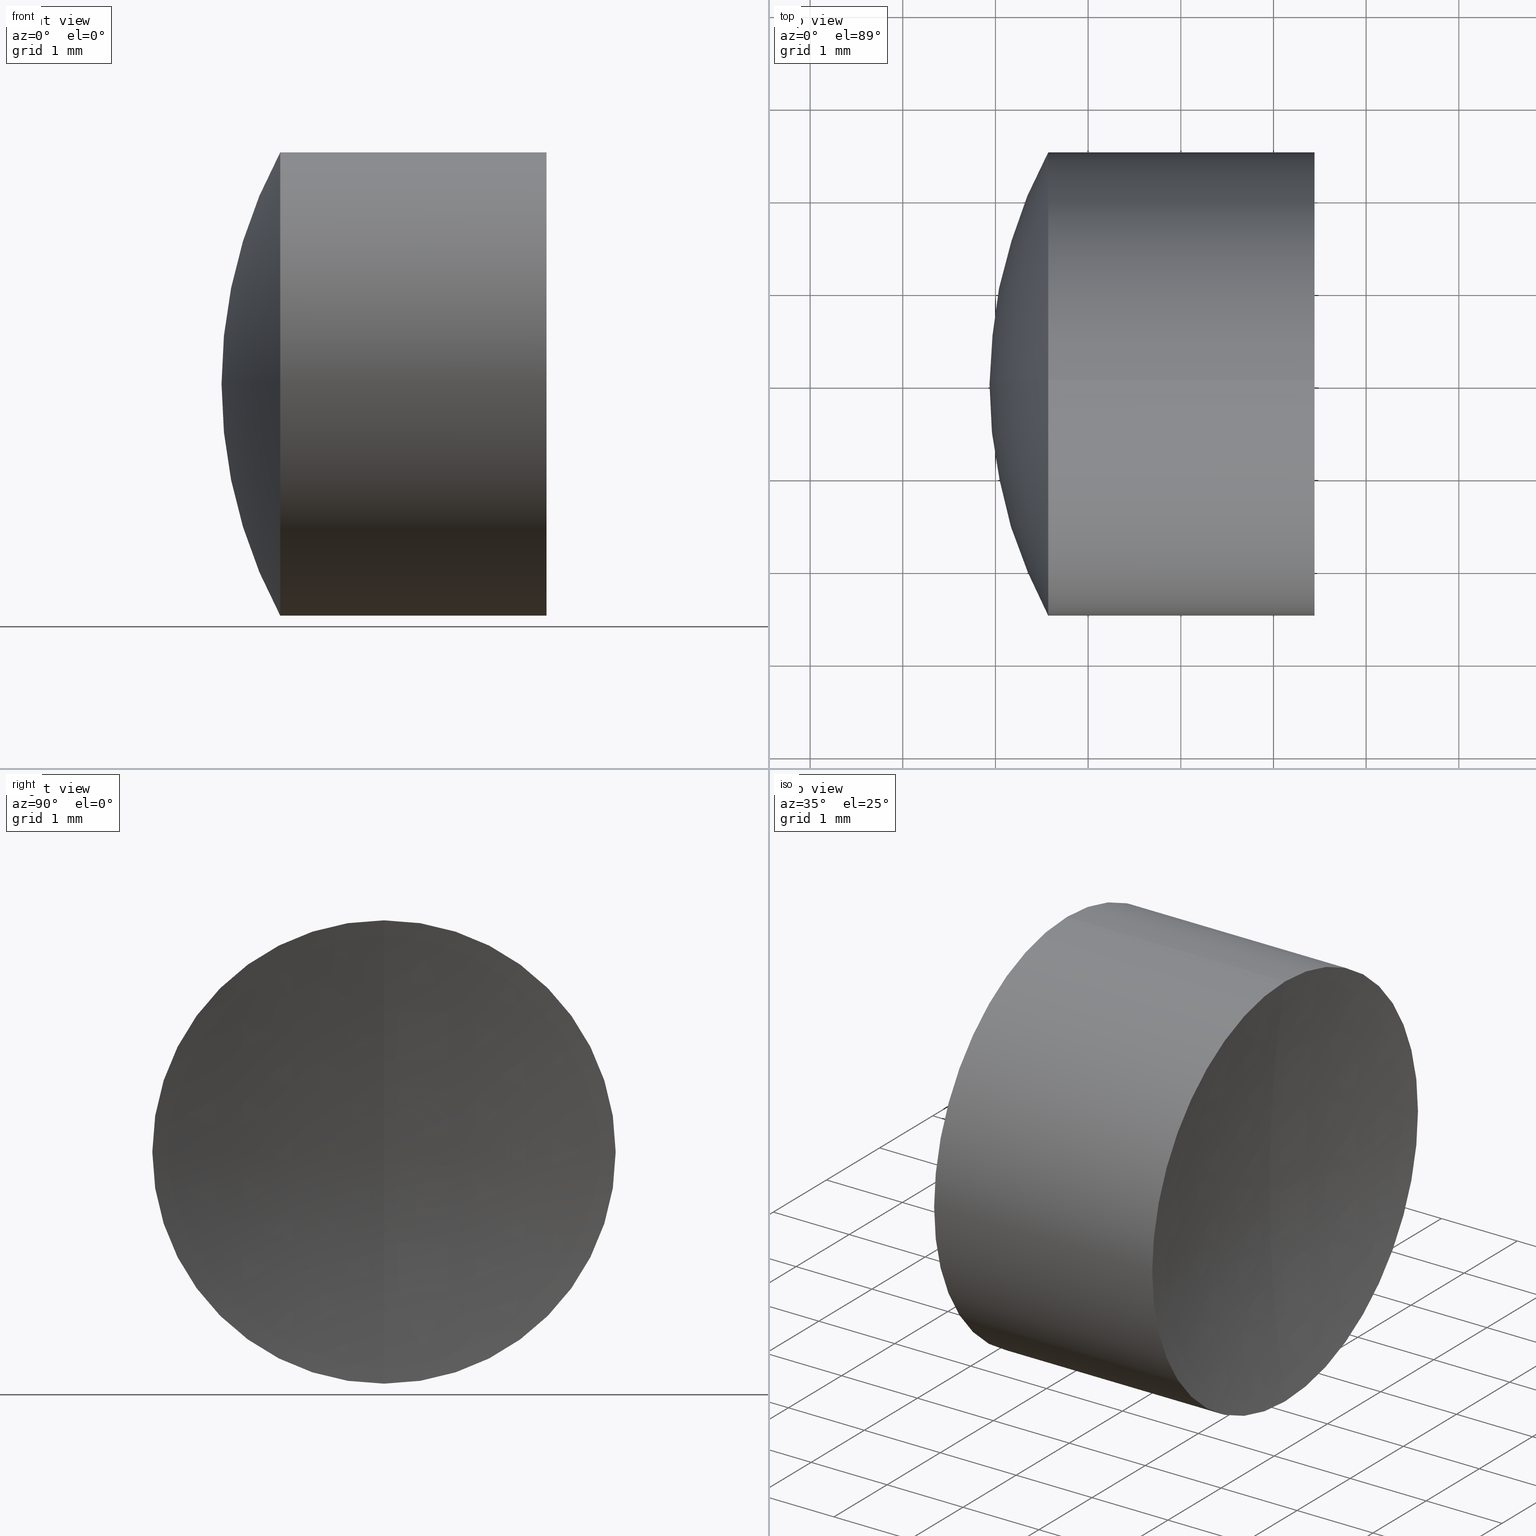
[diagram: canonical four-view strip — front | top / right | iso, engineering-drawing reading convention]
A machine part, canonical four-view strip (front | top / right | iso — engineering-drawing reading convention). The complete STEP part file that produces these views, byte-faithful:
ISO-10303-21;
HEADER;
FILE_DESCRIPTION (( 'STEP AP214' ),
    '1' );
FILE_NAME ('145146.STEP',
    '2019-06-06T02:30:16',
    ( 'user' ),
    ( '΢���й�' ),
    'SwSTEP 2.0',
    'SolidWorks 2016',
    '' );
FILE_SCHEMA (( 'AUTOMOTIVE_DESIGN' ));
ENDSEC;

DATA;
#1 = ORIENTED_EDGE ( 'NONE', *, *, #223, .F. ) ;
#2 = EDGE_CURVE ( 'NONE', #73, #293, #130, .T. ) ;
#3 = CYLINDRICAL_SURFACE ( 'NONE', #247, 2.500000000000000000 ) ;
#4 =( GEOMETRIC_REPRESENTATION_CONTEXT ( 3 ) GLOBAL_UNCERTAINTY_ASSIGNED_CONTEXT ( ( #74 ) ) GLOBAL_UNIT_ASSIGNED_CONTEXT ( ( #100, #106, #107 ) ) REPRESENTATION_CONTEXT ( 'NONE', 'WORKASPACE' ) );
#5 = EDGE_LOOP ( 'NONE', ( #278, #67, #94, #84 ) ) ;
#6 = CARTESIAN_POINT ( 'NONE',  ( 20.47602248475854500, 0.0000000000000000000, 0.0000000000000000000 ) ) ;
#7 = AXIS2_PLACEMENT_3D ( 'NONE', #322, #104, #102 ) ;
#8 = CARTESIAN_POINT ( 'NONE',  ( 7.186022484758546500, 0.0000000000000000000, -6.335624873417847600E-017 ) ) ;
#9 = DIRECTION ( 'NONE',  ( 1.000000000000000000, 0.0000000000000000000, 0.0000000000000000000 ) ) ;
#10 = DIRECTION ( 'NONE',  ( 0.0000000000000000000, -1.000000000000000000, 0.0000000000000000000 ) ) ;
#11 = APPLICATION_PROTOCOL_DEFINITION ( 'draft international standard', 'automotive_design', 1998, #334 ) ;
#12 = DIRECTION ( 'NONE',  ( 0.0000000000000000000, 0.0000000000000000000, -1.000000000000000000 ) ) ;
#13 = CYLINDRICAL_SURFACE ( 'NONE', #331, 2.500000000000000000 ) ;
#14 =( GEOMETRIC_REPRESENTATION_CONTEXT ( 3 ) GLOBAL_UNCERTAINTY_ASSIGNED_CONTEXT ( ( #245 ) ) GLOBAL_UNIT_ASSIGNED_CONTEXT ( ( #288, #232, #34 ) ) REPRESENTATION_CONTEXT ( 'NONE', 'WORKASPACE' ) );
#15 = CARTESIAN_POINT ( 'NONE',  ( 2.569476156603698800, 0.0000000000000000000, 0.0000000000000000000 ) ) ;
#16 = FACE_OUTER_BOUND ( 'NONE', #5, .T. ) ;
#17 = CARTESIAN_POINT ( 'NONE',  ( -1.513977515241453200, 0.0000000000000000000, 0.0000000000000000000 ) ) ;
#18 = UNCERTAINTY_MEASURE_WITH_UNIT (LENGTH_MEASURE( 1.000000000000000100E-005 ), #95, 'distance_accuracy_value', 'NONE');
#19 = DIRECTION ( 'NONE',  ( 0.0000000000000000000, 0.0000000000000000000, -1.000000000000000000 ) ) ;
#20 = EDGE_CURVE ( 'NONE', #293, #132, #168, .T. ) ;
#21 = COLOUR_RGB ( '',1.000000000000000000, 1.000000000000000000, 1.000000000000000000 ) ;
#22 = AXIS2_PLACEMENT_3D ( 'NONE', #93, #66, #188 ) ;
#23 = CARTESIAN_POINT ( 'NONE',  ( 5.442473336270686500, 0.0000000000000000000, -2.499999999999990200 ) ) ;
#24 = MECHANICAL_DESIGN_GEOMETRIC_PRESENTATION_REPRESENTATION (  '', ( #257 ), #49 ) ;
#25 = VERTEX_POINT ( 'NONE', #301 ) ;
#26 = MECHANICAL_DESIGN_GEOMETRIC_PRESENTATION_REPRESENTATION (  '', ( #302 ), #4 ) ;
#27 = ORIENTED_EDGE ( 'NONE', *, *, #79, .T. ) ;
#28 = CARTESIAN_POINT ( 'NONE',  ( 3.936022484758546500, 0.0000000000000000000, 3.337162527676537600E-016 ) ) ;
#29 = DIRECTION ( 'NONE',  ( -1.000000000000000000, -0.0000000000000000000, -0.0000000000000000000 ) ) ;
#30 = CARTESIAN_POINT ( 'NONE',  ( 7.186022484758546500, 0.0000000000000000000, -6.335624873417847600E-017 ) ) ;
#31 = CARTESIAN_POINT ( 'NONE',  ( 0.0000000000000000000, 0.0000000000000000000, 0.0000000000000000000 ) ) ;
#32 = CARTESIAN_POINT ( 'NONE',  ( 20.47602248475854500, 0.0000000000000000000, 0.0000000000000000000 ) ) ;
#33 = AXIS2_PLACEMENT_3D ( 'NONE', #173, #282, #68 ) ;
#34 =( NAMED_UNIT ( * ) SI_UNIT ( $, .STERADIAN. ) SOLID_ANGLE_UNIT ( ) );
#35 = DIRECTION ( 'NONE',  ( -0.0000000000000000000, 1.000000000000000000, 1.224646799147353200E-016 ) ) ;
#36 = CARTESIAN_POINT ( 'NONE',  ( 2.569476156603698800, 0.0000000000000000000, 2.500000000000000400 ) ) ;
#37 = EDGE_CURVE ( 'NONE', #228, #73, #151, .T. ) ;
#38 = ORIENTED_EDGE ( 'NONE', *, *, #223, .T. ) ;
#39 = SURFACE_STYLE_FILL_AREA ( #319 ) ;
#40 = DIRECTION ( 'NONE',  ( -0.0000000000000000000, -1.000000000000000000, -0.0000000000000000000 ) ) ;
#41 = ADVANCED_FACE ( 'NONE', ( #77 ), #13, .T. ) ;
#42 = DIRECTION ( 'NONE',  ( 0.0000000000000000000, 0.0000000000000000000, 1.000000000000000000 ) ) ;
#43 = AXIS2_PLACEMENT_3D ( 'NONE', #208, #294, #97 ) ;
#44 = ORIENTED_EDGE ( 'NONE', *, *, #304, .T. ) ;
#45 = CIRCLE ( 'NONE', #220, 5.250000000000000900 ) ;
#46 = CIRCLE ( 'NONE', #187, 5.450000000000000200 ) ;
#47 = AXIS2_PLACEMENT_3D ( 'NONE', #233, #35, #152 ) ;
#48 = PRODUCT_DEFINITION_CONTEXT ( 'detailed design', #310, 'design' ) ;
#49 =( GEOMETRIC_REPRESENTATION_CONTEXT ( 3 ) GLOBAL_UNCERTAINTY_ASSIGNED_CONTEXT ( ( #140 ) ) GLOBAL_UNIT_ASSIGNED_CONTEXT ( ( #287, #90, #253 ) ) REPRESENTATION_CONTEXT ( 'NONE', 'WORKASPACE' ) );
#50 = PRESENTATION_STYLE_ASSIGNMENT (( #91 ) ) ;
#51 = EDGE_CURVE ( 'NONE', #169, #25, #343, .T. ) ;
#52 = ORIENTED_EDGE ( 'NONE', *, *, #176, .F. ) ;
#53 = CARTESIAN_POINT ( 'NONE',  ( 2.569476156603698800, 3.061616997868383100E-016, -2.500000000000000400 ) ) ;
#54 = ORIENTED_EDGE ( 'NONE', *, *, #162, .F. ) ;
#55 = DIRECTION ( 'NONE',  ( 0.0000000000000000000, 1.000000000000000000, 0.0000000000000000000 ) ) ;
#56 = AXIS2_PLACEMENT_3D ( 'NONE', #116, #127, #85 ) ;
#57 = EDGE_LOOP ( 'NONE', ( #180, #111, #250 ) ) ;
#58 = CARTESIAN_POINT ( 'NONE',  ( 3.328800613064654400, 0.0000000000000000000, -2.499999999999997800 ) ) ;
#59 = CYLINDRICAL_SURFACE ( 'NONE', #203, 2.499999999999997800 ) ;
#60 = DIRECTION ( 'NONE',  ( -1.000000000000000000, -0.0000000000000000000, -0.0000000000000000000 ) ) ;
#61 =( NAMED_UNIT ( * ) SI_UNIT ( $, .STERADIAN. ) SOLID_ANGLE_UNIT ( ) );
#62 = CARTESIAN_POINT ( 'NONE',  ( -0.5519199926577972300, 0.0000000000000000000, 2.499999999999997800 ) ) ;
#63 = CARTESIAN_POINT ( 'NONE',  ( 7.186022484758546500, 0.0000000000000000000, -6.335624873417847600E-017 ) ) ;
#64 = FACE_OUTER_BOUND ( 'NONE', #101, .T. ) ;
#65 = DIRECTION ( 'NONE',  ( -1.000000000000000000, -0.0000000000000000000, -0.0000000000000000000 ) ) ;
#66 = DIRECTION ( 'NONE',  ( -1.000000000000000000, -0.0000000000000000000, -0.0000000000000000000 ) ) ;
#67 = ORIENTED_EDGE ( 'NONE', *, *, #2, .T. ) ;
#68 = DIRECTION ( 'NONE',  ( 0.0000000000000000000, 0.0000000000000000000, 1.000000000000000000 ) ) ;
#69 = CARTESIAN_POINT ( 'NONE',  ( 3.328800613064653900, 3.061616997868383100E-016, -2.500000000000000000 ) ) ;
#70 = ADVANCED_FACE ( 'NONE', ( #172 ), #266, .F. ) ;
#71 = FACE_OUTER_BOUND ( 'NONE', #166, .T. ) ;
#72 = AXIS2_PLACEMENT_3D ( 'NONE', #261, #65, #238 ) ;
#73 = VERTEX_POINT ( 'NONE', #69 ) ;
#74 = UNCERTAINTY_MEASURE_WITH_UNIT (LENGTH_MEASURE( 1.000000000000000100E-005 ), #100, 'distance_accuracy_value', 'NONE');
#75 = EDGE_CURVE ( 'NONE', #327, #293, #80, .T. ) ;
#76 = ORIENTED_EDGE ( 'NONE', *, *, #192, .F. ) ;
#77 = FACE_OUTER_BOUND ( 'NONE', #332, .T. ) ;
#78 = CYLINDRICAL_SURFACE ( 'NONE', #81, 2.499999999999997800 ) ;
#79 = EDGE_CURVE ( 'NONE', #169, #86, #305, .T. ) ;
#80 = CIRCLE ( 'NONE', #22, 2.500000000000000000 ) ;
#81 = AXIS2_PLACEMENT_3D ( 'NONE', #268, #60, #256 ) ;
#82 = FACE_OUTER_BOUND ( 'NONE', #129, .T. ) ;
#83 = DIRECTION ( 'NONE',  ( 0.0000000000000000000, 0.0000000000000000000, -1.000000000000000000 ) ) ;
#84 = ORIENTED_EDGE ( 'NONE', *, *, #309, .F. ) ;
#85 = DIRECTION ( 'NONE',  ( 0.0000000000000000000, 0.0000000000000000000, 1.000000000000000000 ) ) ;
#86 = VERTEX_POINT ( 'NONE', #333 ) ;
#87 = FILL_AREA_STYLE ('',( #118 ) ) ;
#88 = APPLICATION_PROTOCOL_DEFINITION ( 'draft international standard', 'automotive_design', 1998, #310 ) ;
#89 = SURFACE_SIDE_STYLE ('',( #221 ) ) ;
#90 =( NAMED_UNIT ( * ) PLANE_ANGLE_UNIT ( ) SI_UNIT ( $, .RADIAN. ) );
#91 = SURFACE_STYLE_USAGE ( .BOTH. , #89 ) ;
#92 = PRODUCT_RELATED_PRODUCT_CATEGORY ( 'part', '', ( #281 ) ) ;
#93 = CARTESIAN_POINT ( 'NONE',  ( 2.569476156603698800, 0.0000000000000000000, 0.0000000000000000000 ) ) ;
#94 = ORIENTED_EDGE ( 'NONE', *, *, #75, .F. ) ;
#95 =( LENGTH_UNIT ( ) NAMED_UNIT ( * ) SI_UNIT ( .MILLI., .METRE. ) );
#96 = DIRECTION ( 'NONE',  ( -0.0000000000000000000, 1.000000000000000000, 1.224646799147353200E-016 ) ) ;
#97 = DIRECTION ( 'NONE',  ( 0.0000000000000000000, 0.0000000000000000000, 1.000000000000000000 ) ) ;
#98 = CARTESIAN_POINT ( 'NONE',  ( -1.513977515241453200, 0.0000000000000000000, 0.0000000000000000000 ) ) ;
#99 = ORIENTED_EDGE ( 'NONE', *, *, #192, .T. ) ;
#100 =( LENGTH_UNIT ( ) NAMED_UNIT ( * ) SI_UNIT ( .MILLI., .METRE. ) );
#101 = EDGE_LOOP ( 'NONE', ( #254, #110, #199 ) ) ;
#102 = DIRECTION ( 'NONE',  ( 0.0000000000000000000, 0.0000000000000000000, -1.000000000000000000 ) ) ;
#103 = AXIS2_PLACEMENT_3D ( 'NONE', #236, #317, #124 ) ;
#104 = DIRECTION ( 'NONE',  ( -0.0000000000000000000, -1.000000000000000000, -0.0000000000000000000 ) ) ;
#105 = ADVANCED_FACE ( 'NONE', ( #213 ), #78, .T. ) ;
#106 =( NAMED_UNIT ( * ) PLANE_ANGLE_UNIT ( ) SI_UNIT ( $, .RADIAN. ) );
#107 =( NAMED_UNIT ( * ) SI_UNIT ( $, .STERADIAN. ) SOLID_ANGLE_UNIT ( ) );
#108 = CIRCLE ( 'NONE', #276, 15.23999999999999800 ) ;
#109 =( GEOMETRIC_REPRESENTATION_CONTEXT ( 3 ) GLOBAL_UNCERTAINTY_ASSIGNED_CONTEXT ( ( #18 ) ) GLOBAL_UNIT_ASSIGNED_CONTEXT ( ( #95, #258, #61 ) ) REPRESENTATION_CONTEXT ( 'NONE', 'WORKASPACE' ) );
#110 = ORIENTED_EDGE ( 'NONE', *, *, #20, .T. ) ;
#111 = ORIENTED_EDGE ( 'NONE', *, *, #330, .F. ) ;
#112 = VECTOR ( 'NONE', #154, 1000.000000000000000 ) ;
#113 = AXIS2_PLACEMENT_3D ( 'NONE', #30, #55, #42 ) ;
#114 = DIRECTION ( 'NONE',  ( 0.0000000000000000000, 0.0000000000000000000, 1.000000000000000000 ) ) ;
#115 = AXIS2_PLACEMENT_3D ( 'NONE', #239, #249, #83 ) ;
#116 = CARTESIAN_POINT ( 'NONE',  ( -1.513977515241453200, 0.0000000000000000000, 0.0000000000000000000 ) ) ;
#117 = SURFACE_STYLE_USAGE ( .BOTH. , #315 ) ;
#118 = FILL_AREA_STYLE_COLOUR ( '', #21 ) ;
#119 = DIRECTION ( 'NONE',  ( 0.0000000000000000000, 0.0000000000000000000, -1.000000000000000000 ) ) ;
#120 = CARTESIAN_POINT ( 'NONE',  ( 3.328800613064653900, 0.0000000000000000000, 0.0000000000000000000 ) ) ;
#121 = SURFACE_SIDE_STYLE ('',( #39 ) ) ;
#122 = DIRECTION ( 'NONE',  ( -1.000000000000000000, -0.0000000000000000000, -0.0000000000000000000 ) ) ;
#123 = AXIS2_PLACEMENT_3D ( 'NONE', #336, #148, #316 ) ;
#124 = DIRECTION ( 'NONE',  ( 0.0000000000000000000, 0.0000000000000000000, 1.000000000000000000 ) ) ;
#125 = EDGE_LOOP ( 'NONE', ( #54, #312, #246 ) ) ;
#126 = FACE_OUTER_BOUND ( 'NONE', #125, .T. ) ;
#127 = DIRECTION ( 'NONE',  ( 0.0000000000000000000, 1.000000000000000000, 0.0000000000000000000 ) ) ;
#128 = ADVANCED_FACE ( 'NONE', ( #163 ), #307, .T. ) ;
#129 = EDGE_LOOP ( 'NONE', ( #341, #44, #262 ) ) ;
#130 = LINE ( 'NONE', #211, #277 ) ;
#131 = STYLED_ITEM ( 'NONE', ( #275 ), #328 ) ;
#132 = VERTEX_POINT ( 'NONE', #170 ) ;
#133 = ORIENTED_EDGE ( 'NONE', *, *, #20, .F. ) ;
#134 = CIRCLE ( 'NONE', #224, 2.499999999999998200 ) ;
#135 = ORIENTED_EDGE ( 'NONE', *, *, #326, .T. ) ;
#136 = DIRECTION ( 'NONE',  ( -1.000000000000000000, -0.0000000000000000000, -0.0000000000000000000 ) ) ;
#137 = MECHANICAL_DESIGN_GEOMETRIC_PRESENTATION_REPRESENTATION (  '', ( #131 ), #109 ) ;
#138 = EDGE_LOOP ( 'NONE', ( #157, #227, #225 ) ) ;
#139 = CIRCLE ( 'NONE', #147, 5.450000000000000200 ) ;
#140 = UNCERTAINTY_MEASURE_WITH_UNIT (LENGTH_MEASURE( 1.000000000000000100E-005 ), #287, 'distance_accuracy_value', 'NONE');
#141 = CLOSED_SHELL ( 'NONE', ( #184, #299, #70, #342, #267, #105 ) ) ;
#142 = DIRECTION ( 'NONE',  ( -1.000000000000000000, -0.0000000000000000000, -0.0000000000000000000 ) ) ;
#143 = DIRECTION ( 'NONE',  ( 0.0000000000000000000, 0.0000000000000000000, 1.000000000000000000 ) ) ;
#144 = CIRCLE ( 'NONE', #33, 2.499999999999997800 ) ;
#145 = FILL_AREA_STYLE ('',( #205 ) ) ;
#146 = CARTESIAN_POINT ( 'NONE',  ( 5.442473336270686500, 0.0000000000000000000, 0.0000000000000000000 ) ) ;
#147 = AXIS2_PLACEMENT_3D ( 'NONE', #98, #212, #214 ) ;
#148 = DIRECTION ( 'NONE',  ( -1.000000000000000000, -0.0000000000000000000, -0.0000000000000000000 ) ) ;
#149 = CARTESIAN_POINT ( 'NONE',  ( -0.5519199926577972300, 0.0000000000000000000, 0.0000000000000000000 ) ) ;
#150 = DIRECTION ( 'NONE',  ( 0.0000000000000000000, 0.0000000000000000000, 1.000000000000000000 ) ) ;
#151 = CIRCLE ( 'NONE', #47, 5.450000000000000200 ) ;
#152 = DIRECTION ( 'NONE',  ( 0.0000000000000000000, -1.224646799147353200E-016, 1.000000000000000000 ) ) ;
#153 = CIRCLE ( 'NONE', #193, 5.450000000000000200 ) ;
#154 = DIRECTION ( 'NONE',  ( -1.000000000000000000, -0.0000000000000000000, -0.0000000000000000000 ) ) ;
#155 = DIRECTION ( 'NONE',  ( -1.000000000000000000, -0.0000000000000000000, -0.0000000000000000000 ) ) ;
#156 = ORIENTED_EDGE ( 'NONE', *, *, #217, .F. ) ;
#157 = ORIENTED_EDGE ( 'NONE', *, *, #304, .F. ) ;
#158 = DIRECTION ( 'NONE',  ( 0.0000000000000000000, 0.0000000000000000000, 1.000000000000000000 ) ) ;
#159 = DIRECTION ( 'NONE',  ( 0.0000000000000000000, 0.0000000000000000000, 1.000000000000000000 ) ) ;
#160 = ADVANCED_FACE ( 'NONE', ( #16 ), #3, .T. ) ;
#161 = CARTESIAN_POINT ( 'NONE',  ( 20.47602248475854500, 0.0000000000000000000, 0.0000000000000000000 ) ) ;
#162 = EDGE_CURVE ( 'NONE', #228, #283, #139, .T. ) ;
#163 = FACE_OUTER_BOUND ( 'NONE', #321, .T. ) ;
#164 = DIRECTION ( 'NONE',  ( 0.0000000000000000000, 1.000000000000000000, -0.0000000000000000000 ) ) ;
#165 = ORIENTED_EDGE ( 'NONE', *, *, #183, .T. ) ;
#166 = EDGE_LOOP ( 'NONE', ( #165, #38, #156, #219 ) ) ;
#167 = PRESENTATION_LAYER_ASSIGNMENT (  '', '', ( #302 ) ) ;
#168 = CIRCLE ( 'NONE', #270, 5.250000000000000900 ) ;
#169 = VERTEX_POINT ( 'NONE', #252 ) ;
#170 = CARTESIAN_POINT ( 'NONE',  ( 1.936022484758545700, 0.0000000000000000000, 2.581135360420018100E-016 ) ) ;
#171 = EDGE_CURVE ( 'NONE', #218, #25, #153, .T. ) ;
#172 = FACE_OUTER_BOUND ( 'NONE', #138, .T. ) ;
#173 = CARTESIAN_POINT ( 'NONE',  ( 3.328800613064654400, 0.0000000000000000000, 0.0000000000000000000 ) ) ;
#174 = AXIS2_PLACEMENT_3D ( 'NONE', #6, #40, #19 ) ;
#175 = DIRECTION ( 'NONE',  ( 0.0000000000000000000, 0.0000000000000000000, 1.000000000000000000 ) ) ;
#176 = EDGE_CURVE ( 'NONE', #308, #86, #108, .T. ) ;
#177 = DIRECTION ( 'NONE',  ( -1.000000000000000000, -0.0000000000000000000, -0.0000000000000000000 ) ) ;
#178 = CARTESIAN_POINT ( 'NONE',  ( -0.5519199926577972300, 3.061616997868380700E-016, -2.499999999999997800 ) ) ;
#179 = DIRECTION ( 'NONE',  ( 0.0000000000000000000, 1.000000000000000000, -0.0000000000000000000 ) ) ;
#180 = ORIENTED_EDGE ( 'NONE', *, *, #79, .F. ) ;
#181 = ADVANCED_BREP_SHAPE_REPRESENTATION ( '145146', ( #209, #328, #311 ), #14 ) ;
#182 = DIRECTION ( 'NONE',  ( -1.000000000000000000, -0.0000000000000000000, -0.0000000000000000000 ) ) ;
#183 = EDGE_CURVE ( 'NONE', #169, #308, #134, .T. ) ;
#184 = ADVANCED_FACE ( 'NONE', ( #71 ), #59, .T. ) ;
#185 = DIRECTION ( 'NONE',  ( 0.0000000000000000000, -1.000000000000000000, -1.224646799147353200E-016 ) ) ;
#186 = COLOUR_RGB ( '',1.000000000000000000, 1.000000000000000000, 1.000000000000000000 ) ;
#187 = AXIS2_PLACEMENT_3D ( 'NONE', #17, #179, #338 ) ;
#188 = DIRECTION ( 'NONE',  ( 0.0000000000000000000, 0.0000000000000000000, 1.000000000000000000 ) ) ;
#189 = SPHERICAL_SURFACE ( 'NONE', #285, 5.450000000000000200 ) ;
#190 = EDGE_LOOP ( 'NONE', ( #1, #347, #240, #271 ) ) ;
#191 = LINE ( 'NONE', #195, #112 ) ;
#192 = EDGE_CURVE ( 'NONE', #73, #283, #335, .T. ) ;
#193 = AXIS2_PLACEMENT_3D ( 'NONE', #244, #185, #198 ) ;
#194 = PRESENTATION_STYLE_ASSIGNMENT (( #117 ) ) ;
#195 = CARTESIAN_POINT ( 'NONE',  ( -0.8160621761658039000, 0.0000000000000000000, 2.500000000000000000 ) ) ;
#196 = ORIENTED_EDGE ( 'NONE', *, *, #326, .F. ) ;
#197 = PRODUCT_CONTEXT ( 'NONE', #334, 'mechanical' ) ;
#198 = DIRECTION ( 'NONE',  ( 0.0000000000000000000, 1.224646799147353200E-016, -1.000000000000000000 ) ) ;
#199 = ORIENTED_EDGE ( 'NONE', *, *, #248, .F. ) ;
#200 = DIRECTION ( 'NONE',  ( 0.0000000000000000000, 1.224646799147353000E-016, -1.000000000000000000 ) ) ;
#201 = CLOSED_SHELL ( 'NONE', ( #215, #160, #241, #323, #41, #128 ) ) ;
#202 = CARTESIAN_POINT ( 'NONE',  ( 3.936022484758546500, 0.0000000000000000000, -3.337162527676537600E-016 ) ) ;
#203 = AXIS2_PLACEMENT_3D ( 'NONE', #149, #284, #158 ) ;
#204 = DIRECTION ( 'NONE',  ( -0.0000000000000000000, -1.000000000000000000, -0.0000000000000000000 ) ) ;
#205 = FILL_AREA_STYLE_COLOUR ( '', #186 ) ;
#206 = DIRECTION ( 'NONE',  ( 0.0000000000000000000, -1.224646799147353200E-016, 1.000000000000000000 ) ) ;
#207 = ORIENTED_EDGE ( 'NONE', *, *, #309, .T. ) ;
#208 = CARTESIAN_POINT ( 'NONE',  ( 7.186022484758546500, 0.0000000000000000000, -6.335624873417847600E-017 ) ) ;
#209 = MANIFOLD_SOLID_BREP ( '��ת1', #201 ) ;
#210 = VECTOR ( 'NONE', #29, 1000.000000000000000 ) ;
#211 = CARTESIAN_POINT ( 'NONE',  ( -0.8160621761658039000, 3.061616997868383100E-016, -2.500000000000000000 ) ) ;
#212 = DIRECTION ( 'NONE',  ( 0.0000000000000000000, -1.000000000000000000, 0.0000000000000000000 ) ) ;
#213 = FACE_OUTER_BOUND ( 'NONE', #190, .T. ) ;
#214 = DIRECTION ( 'NONE',  ( 0.0000000000000000000, 0.0000000000000000000, -1.000000000000000000 ) ) ;
#215 = ADVANCED_FACE ( 'NONE', ( #126 ), #279, .T. ) ;
#216 = CIRCLE ( 'NONE', #318, 2.500000000000000000 ) ;
#217 = EDGE_CURVE ( 'NONE', #25, #222, #144, .T. ) ;
#218 = VERTEX_POINT ( 'NONE', #202 ) ;
#219 = ORIENTED_EDGE ( 'NONE', *, *, #51, .F. ) ;
#220 = AXIS2_PLACEMENT_3D ( 'NONE', #8, #10, #12 ) ;
#221 = SURFACE_STYLE_FILL_AREA ( #87 ) ;
#222 = VERTEX_POINT ( 'NONE', #58 ) ;
#223 = EDGE_CURVE ( 'NONE', #308, #222, #325, .T. ) ;
#224 = AXIS2_PLACEMENT_3D ( 'NONE', #146, #142, #143 ) ;
#225 = ORIENTED_EDGE ( 'NONE', *, *, #217, .T. ) ;
#226 = SPHERICAL_SURFACE ( 'NONE', #113, 5.250000000000000900 ) ;
#227 = ORIENTED_EDGE ( 'NONE', *, *, #171, .T. ) ;
#228 = VERTEX_POINT ( 'NONE', #28 ) ;
#229 = DIRECTION ( 'NONE',  ( -1.000000000000000000, -0.0000000000000000000, -0.0000000000000000000 ) ) ;
#230 = AXIS2_PLACEMENT_3D ( 'NONE', #120, #122, #114 ) ;
#231 = DIRECTION ( 'NONE',  ( 0.0000000000000000000, 0.0000000000000000000, 1.000000000000000000 ) ) ;
#232 =( NAMED_UNIT ( * ) PLANE_ANGLE_UNIT ( ) SI_UNIT ( $, .RADIAN. ) );
#233 = CARTESIAN_POINT ( 'NONE',  ( -1.513977515241453200, 0.0000000000000000000, 0.0000000000000000000 ) ) ;
#234 = FILL_AREA_STYLE_COLOUR ( '', #269 ) ;
#235 = SPHERICAL_SURFACE ( 'NONE', #174, 15.23999999999999800 ) ;
#236 = CARTESIAN_POINT ( 'NONE',  ( -1.513977515241453200, 0.0000000000000000000, 0.0000000000000000000 ) ) ;
#237 = PRODUCT_DEFINITION_FORMATION_WITH_SPECIFIED_SOURCE ( '�κ�', '', #281, .NOT_KNOWN. ) ;
#238 = DIRECTION ( 'NONE',  ( 0.0000000000000000000, 0.0000000000000000000, 1.000000000000000000 ) ) ;
#239 = CARTESIAN_POINT ( 'NONE',  ( 20.47602248475854500, 0.0000000000000000000, 0.0000000000000000000 ) ) ;
#240 = ORIENTED_EDGE ( 'NONE', *, *, #51, .T. ) ;
#241 = ADVANCED_FACE ( 'NONE', ( #64 ), #226, .T. ) ;
#242 = SHAPE_DEFINITION_REPRESENTATION ( #344, #181 ) ;
#243 = PRESENTATION_LAYER_ASSIGNMENT (  '', '', ( #131 ) ) ;
#244 = CARTESIAN_POINT ( 'NONE',  ( -1.513977515241453200, 0.0000000000000000000, 0.0000000000000000000 ) ) ;
#245 = UNCERTAINTY_MEASURE_WITH_UNIT (LENGTH_MEASURE( 1.000000000000000100E-005 ), #288, 'distance_accuracy_value', 'NONE');
#246 = ORIENTED_EDGE ( 'NONE', *, *, #300, .F. ) ;
#247 = AXIS2_PLACEMENT_3D ( 'NONE', #289, #229, #260 ) ;
#248 = EDGE_CURVE ( 'NONE', #327, #132, #45, .T. ) ;
#249 = DIRECTION ( 'NONE',  ( -0.0000000000000000000, -1.000000000000000000, -0.0000000000000000000 ) ) ;
#250 = ORIENTED_EDGE ( 'NONE', *, *, #176, .T. ) ;
#251 = EDGE_LOOP ( 'NONE', ( #133, #135, #297 ) ) ;
#252 = CARTESIAN_POINT ( 'NONE',  ( 5.442473336270686500, -3.061616997868370300E-016, 2.499999999999990200 ) ) ;
#253 =( NAMED_UNIT ( * ) SI_UNIT ( $, .STERADIAN. ) SOLID_ANGLE_UNIT ( ) );
#254 = ORIENTED_EDGE ( 'NONE', *, *, #75, .T. ) ;
#255 = CIRCLE ( 'NONE', #72, 2.500000000000000000 ) ;
#256 = DIRECTION ( 'NONE',  ( 0.0000000000000000000, 0.0000000000000000000, 1.000000000000000000 ) ) ;
#257 = STYLED_ITEM ( 'NONE', ( #194 ), #181 ) ;
#258 =( NAMED_UNIT ( * ) PLANE_ANGLE_UNIT ( ) SI_UNIT ( $, .RADIAN. ) );
#259 = CARTESIAN_POINT ( 'NONE',  ( -1.513977515241453200, 0.0000000000000000000, 0.0000000000000000000 ) ) ;
#260 = DIRECTION ( 'NONE',  ( 0.0000000000000000000, 0.0000000000000000000, 1.000000000000000000 ) ) ;
#261 = CARTESIAN_POINT ( 'NONE',  ( 3.328800613064653900, 0.0000000000000000000, 0.0000000000000000000 ) ) ;
#262 = ORIENTED_EDGE ( 'NONE', *, *, #291, .T. ) ;
#263 = CARTESIAN_POINT ( 'NONE',  ( 3.328800613064653900, 0.0000000000000000000, 2.500000000000000000 ) ) ;
#264 = FACE_OUTER_BOUND ( 'NONE', #251, .T. ) ;
#265 = AXIS2_PLACEMENT_3D ( 'NONE', #32, #313, #200 ) ;
#266 = SPHERICAL_SURFACE ( 'NONE', #7, 5.450000000000000200 ) ;
#267 = ADVANCED_FACE ( 'NONE', ( #280 ), #235, .F. ) ;
#268 = CARTESIAN_POINT ( 'NONE',  ( -0.5519199926577972300, 0.0000000000000000000, 0.0000000000000000000 ) ) ;
#269 = COLOUR_RGB ( '',1.000000000000000000, 1.000000000000000000, 1.000000000000000000 ) ;
#270 = AXIS2_PLACEMENT_3D ( 'NONE', #63, #96, #206 ) ;
#271 = ORIENTED_EDGE ( 'NONE', *, *, #291, .F. ) ;
#272 = CIRCLE ( 'NONE', #123, 2.499999999999998200 ) ;
#273 = SPHERICAL_SURFACE ( 'NONE', #43, 5.250000000000000900 ) ;
#274 = SURFACE_STYLE_FILL_AREA ( #145 ) ;
#275 = PRESENTATION_STYLE_ASSIGNMENT (( #290 ) ) ;
#276 = AXIS2_PLACEMENT_3D ( 'NONE', #161, #164, #159 ) ;
#277 = VECTOR ( 'NONE', #155, 1000.000000000000000 ) ;
#278 = ORIENTED_EDGE ( 'NONE', *, *, #300, .T. ) ;
#279 = SPHERICAL_SURFACE ( 'NONE', #56, 5.450000000000000200 ) ;
#280 = FACE_OUTER_BOUND ( 'NONE', #57, .T. ) ;
#281 = PRODUCT ( '145146', '145146', '', ( #197 ) ) ;
#282 = DIRECTION ( 'NONE',  ( -1.000000000000000000, -0.0000000000000000000, -0.0000000000000000000 ) ) ;
#283 = VERTEX_POINT ( 'NONE', #263 ) ;
#284 = DIRECTION ( 'NONE',  ( -1.000000000000000000, -0.0000000000000000000, -0.0000000000000000000 ) ) ;
#285 = AXIS2_PLACEMENT_3D ( 'NONE', #259, #204, #119 ) ;
#286 = CIRCLE ( 'NONE', #324, 2.499999999999997800 ) ;
#287 =( LENGTH_UNIT ( ) NAMED_UNIT ( * ) SI_UNIT ( .MILLI., .METRE. ) );
#288 =( LENGTH_UNIT ( ) NAMED_UNIT ( * ) SI_UNIT ( .MILLI., .METRE. ) );
#289 = CARTESIAN_POINT ( 'NONE',  ( -0.8160621761658039000, 0.0000000000000000000, 0.0000000000000000000 ) ) ;
#290 = SURFACE_STYLE_USAGE ( .BOTH. , #121 ) ;
#291 = EDGE_CURVE ( 'NONE', #222, #25, #286, .T. ) ;
#292 = DIRECTION ( 'NONE',  ( -1.000000000000000000, -0.0000000000000000000, -0.0000000000000000000 ) ) ;
#293 = VERTEX_POINT ( 'NONE', #53 ) ;
#294 = DIRECTION ( 'NONE',  ( 0.0000000000000000000, 1.000000000000000000, 0.0000000000000000000 ) ) ;
#295 = PRODUCT_DEFINITION ( 'δ֪', '', #237, #48 ) ;
#296 = CARTESIAN_POINT ( 'NONE',  ( -0.8160621761658039000, 0.0000000000000000000, 0.0000000000000000000 ) ) ;
#297 = ORIENTED_EDGE ( 'NONE', *, *, #248, .T. ) ;
#298 = ORIENTED_EDGE ( 'NONE', *, *, #2, .F. ) ;
#299 = ADVANCED_FACE ( 'NONE', ( #340 ), #345, .F. ) ;
#300 = EDGE_CURVE ( 'NONE', #283, #73, #255, .T. ) ;
#301 = CARTESIAN_POINT ( 'NONE',  ( 3.328800613064654400, -3.061616997868380700E-016, 2.499999999999997800 ) ) ;
#302 = STYLED_ITEM ( 'NONE', ( #50 ), #209 ) ;
#303 = ORIENTED_EDGE ( 'NONE', *, *, #183, .F. ) ;
#304 = EDGE_CURVE ( 'NONE', #218, #222, #46, .T. ) ;
#305 = CIRCLE ( 'NONE', #265, 15.23999999999999800 ) ;
#306 = PRESENTATION_LAYER_ASSIGNMENT (  '', '', ( #257 ) ) ;
#307 = SPHERICAL_SURFACE ( 'NONE', #103, 5.450000000000000200 ) ;
#308 = VERTEX_POINT ( 'NONE', #23 ) ;
#309 = EDGE_CURVE ( 'NONE', #283, #327, #191, .T. ) ;
#310 = APPLICATION_CONTEXT ( 'automotive_design' ) ;
#311 = AXIS2_PLACEMENT_3D ( 'NONE', #31, #175, #9 ) ;
#312 = ORIENTED_EDGE ( 'NONE', *, *, #37, .T. ) ;
#313 = DIRECTION ( 'NONE',  ( 0.0000000000000000000, -1.000000000000000000, -1.224646799147353200E-016 ) ) ;
#314 = VECTOR ( 'NONE', #182, 1000.000000000000000 ) ;
#315 = SURFACE_SIDE_STYLE ('',( #274 ) ) ;
#316 = DIRECTION ( 'NONE',  ( 0.0000000000000000000, 0.0000000000000000000, 1.000000000000000000 ) ) ;
#317 = DIRECTION ( 'NONE',  ( 0.0000000000000000000, 1.000000000000000000, 0.0000000000000000000 ) ) ;
#318 = AXIS2_PLACEMENT_3D ( 'NONE', #15, #177, #150 ) ;
#319 = FILL_AREA_STYLE ('',( #234 ) ) ;
#320 = ORIENTED_EDGE ( 'NONE', *, *, #162, .T. ) ;
#321 = EDGE_LOOP ( 'NONE', ( #339, #320, #76 ) ) ;
#322 = CARTESIAN_POINT ( 'NONE',  ( -1.513977515241453200, 0.0000000000000000000, 0.0000000000000000000 ) ) ;
#323 = ADVANCED_FACE ( 'NONE', ( #264 ), #273, .T. ) ;
#324 = AXIS2_PLACEMENT_3D ( 'NONE', #337, #136, #329 ) ;
#325 = LINE ( 'NONE', #178, #210 ) ;
#326 = EDGE_CURVE ( 'NONE', #293, #327, #216, .T. ) ;
#327 = VERTEX_POINT ( 'NONE', #36 ) ;
#328 = MANIFOLD_SOLID_BREP ( '��ת2', #141 ) ;
#329 = DIRECTION ( 'NONE',  ( 0.0000000000000000000, 0.0000000000000000000, 1.000000000000000000 ) ) ;
#330 = EDGE_CURVE ( 'NONE', #308, #169, #272, .T. ) ;
#331 = AXIS2_PLACEMENT_3D ( 'NONE', #296, #292, #231 ) ;
#332 = EDGE_LOOP ( 'NONE', ( #298, #99, #207, #196 ) ) ;
#333 = CARTESIAN_POINT ( 'NONE',  ( 5.236022484758547300, 0.0000000000000000000, -9.331808609502829000E-016 ) ) ;
#334 = APPLICATION_CONTEXT ( 'automotive_design' ) ;
#335 = CIRCLE ( 'NONE', #230, 2.500000000000000000 ) ;
#336 = CARTESIAN_POINT ( 'NONE',  ( 5.442473336270686500, 0.0000000000000000000, 0.0000000000000000000 ) ) ;
#337 = CARTESIAN_POINT ( 'NONE',  ( 3.328800613064654400, 0.0000000000000000000, 0.0000000000000000000 ) ) ;
#338 = DIRECTION ( 'NONE',  ( 0.0000000000000000000, 0.0000000000000000000, 1.000000000000000000 ) ) ;
#339 = ORIENTED_EDGE ( 'NONE', *, *, #37, .F. ) ;
#340 = FACE_OUTER_BOUND ( 'NONE', #346, .T. ) ;
#341 = ORIENTED_EDGE ( 'NONE', *, *, #171, .F. ) ;
#342 = ADVANCED_FACE ( 'NONE', ( #82 ), #189, .F. ) ;
#343 = LINE ( 'NONE', #62, #314 ) ;
#344 = PRODUCT_DEFINITION_SHAPE ( 'NONE', 'NONE',  #295 ) ;
#345 = SPHERICAL_SURFACE ( 'NONE', #115, 15.23999999999999800 ) ;
#346 = EDGE_LOOP ( 'NONE', ( #303, #27, #52 ) ) ;
#347 = ORIENTED_EDGE ( 'NONE', *, *, #330, .T. ) ;
ENDSEC;
END-ISO-10303-21;
